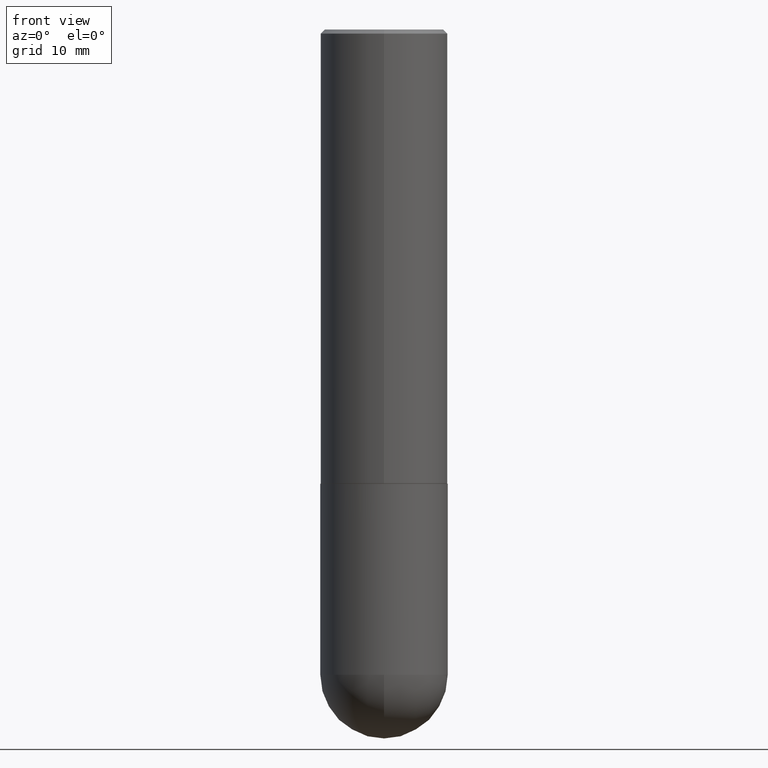
[diagram: clean part render]
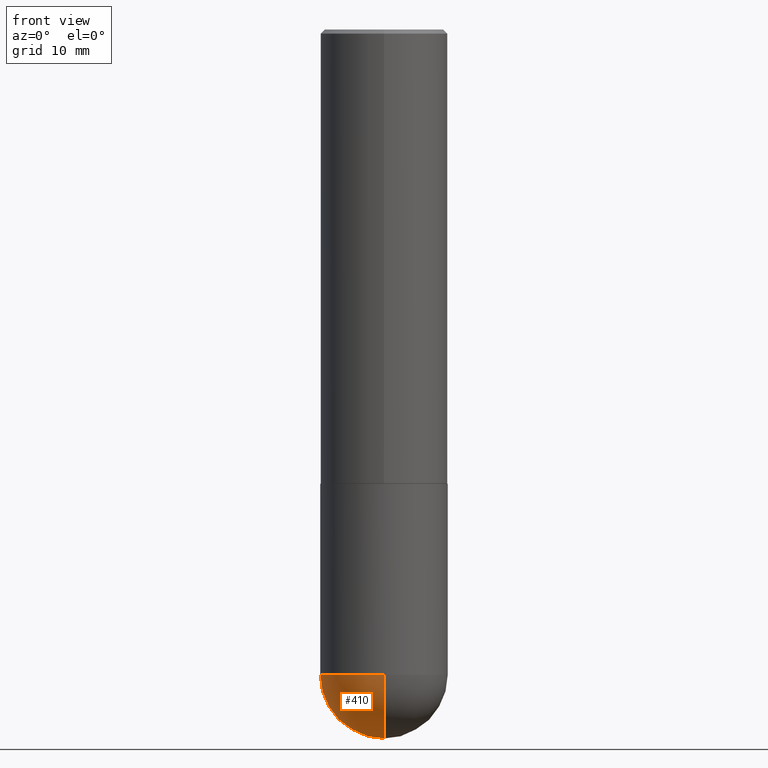
[diagram: same view with one face highlighted and labeled with its STEP entity id]
A machine part, front view. The second image highlights one B-rep face of the part: STEP entity #410.
In plain terms, the highlighted spherical surface has radius 7.9997 mm.
Its self-contained STEP definition (entity closure, byte-faithful):
#14 = AXIS2_PLACEMENT_3D ( 'NONE', #390, #101, #173 ) ;
#18 = DIRECTION ( 'NONE',  ( -2.445468806185136597E-29, 3.491481338843145583E-15, 1.000000000000000000 ) ) ;
#25 = VERTEX_POINT ( 'NONE', #243 ) ;
#33 = CARTESIAN_POINT ( 'NONE',  ( 7.798477749484091354E-29, -1.113415941550384898E-14, -3.188949999999999729 ) ) ;
#37 = DIRECTION ( 'NONE',  ( -7.105427357600999492E-15, -1.000000000000000000, 0.000000000000000000 ) ) ;
#44 = SPHERICAL_SURFACE ( 'NONE', #14, 0.3149500000000001743 ) ;
#68 = CARTESIAN_POINT ( 'NONE',  ( 7.467357971570205107E-29, -1.160834178364390085E-14, -3.188949999999999729 ) ) ;
#70 = AXIS2_PLACEMENT_3D ( 'NONE', #383, #257, #37 ) ;
#71 = EDGE_LOOP ( 'NONE', ( #212, #203, #174, #181 ) ) ;
#81 = CIRCLE ( 'NONE', #397, 0.3149500000000000077 ) ;
#82 = CIRCLE ( 'NONE', #343, 0.3149500000000000077 ) ;
#99 = EDGE_CURVE ( 'NONE', #274, #25, #328, .T. ) ;
#101 = DIRECTION ( 'NONE',  ( -1.000000000000000000, 6.982962677686265133E-15, -4.883557194083112901E-29 ) ) ;
#121 = CARTESIAN_POINT ( 'NONE',  ( 7.798477749484091354E-29, -1.113415941550384898E-14, -3.188949999999999729 ) ) ;
#134 = DIRECTION ( 'NONE',  ( 1.000000000000000000, -6.982962677686265922E-15, 4.883557194083112340E-29 ) ) ;
#144 = EDGE_CURVE ( 'NONE', #341, #368, #81, .T. ) ;
#146 = CIRCLE ( 'NONE', #329, 0.3149500000000001743 ) ;
#149 = DIRECTION ( 'NONE',  ( 1.000000000000000000, -6.982962677686263555E-15, 0.000000000000000000 ) ) ;
#173 = DIRECTION ( 'NONE',  ( 6.982962677686265133E-15, 1.000000000000000000, -3.469564049740291586E-15 ) ) ;
#174 = ORIENTED_EDGE ( 'NONE', *, *, #339, .F. ) ;
#181 = ORIENTED_EDGE ( 'NONE', *, *, #144, .F. ) ;
#198 = DIRECTION ( 'NONE',  ( 6.982962677686264344E-15, 1.000000000000000000, 0.000000000000000000 ) ) ;
#203 = ORIENTED_EDGE ( 'NONE', *, *, #99, .T. ) ;
#212 = ORIENTED_EDGE ( 'NONE', *, *, #393, .F. ) ;
#233 = FACE_OUTER_BOUND ( 'NONE', #71, .T. ) ;
#243 = CARTESIAN_POINT ( 'NONE',  ( -2.237854346276359071E-15, -0.3149500000000114985, -3.188949999999998841 ) ) ;
#257 = DIRECTION ( 'NONE',  ( -1.000000000000000000, 7.105427357601001070E-15, -4.926315508542082329E-29 ) ) ;
#273 = CARTESIAN_POINT ( 'NONE',  ( 2.199284095337366390E-15, 0.3149499999999886835, -3.188950000000001062 ) ) ;
#274 = VERTEX_POINT ( 'NONE', #386 ) ;
#318 = CARTESIAN_POINT ( 'NONE',  ( -0.3149500000000000077, -7.246841997724442041E-15, -3.188949999999999729 ) ) ;
#328 = CIRCLE ( 'NONE', #70, 0.3149500000000001743 ) ;
#329 = AXIS2_PLACEMENT_3D ( 'NONE', #68, #134, #198 ) ;
#339 = EDGE_CURVE ( 'NONE', #368, #25, #82, .T. ) ;
#341 = VERTEX_POINT ( 'NONE', #273 ) ;
#343 = AXIS2_PLACEMENT_3D ( 'NONE', #121, #18, #149 ) ;
#361 = DIRECTION ( 'NONE',  ( -2.445468806185136597E-29, 3.491481338843145583E-15, 1.000000000000000000 ) ) ;
#368 = VERTEX_POINT ( 'NONE', #318 ) ;
#379 = DIRECTION ( 'NONE',  ( 1.000000000000000000, -6.982962677686263555E-15, 0.000000000000000000 ) ) ;
#383 = CARTESIAN_POINT ( 'NONE',  ( 7.467357971570205107E-29, -1.160834178364390085E-14, -3.188949999999999729 ) ) ;
#386 = CARTESIAN_POINT ( 'NONE',  ( 8.251025103217066053E-29, -1.268869870584297589E-14, -3.503899999999999793 ) ) ;
#390 = CARTESIAN_POINT ( 'NONE',  ( 7.467357971570205107E-29, -1.160834178364390085E-14, -3.188949999999999729 ) ) ;
#393 = EDGE_CURVE ( 'NONE', #274, #341, #146, .T. ) ;
#397 = AXIS2_PLACEMENT_3D ( 'NONE', #33, #361, #379 ) ;
#410 = ADVANCED_FACE ( 'NONE', ( #233 ), #44, .T. ) ;